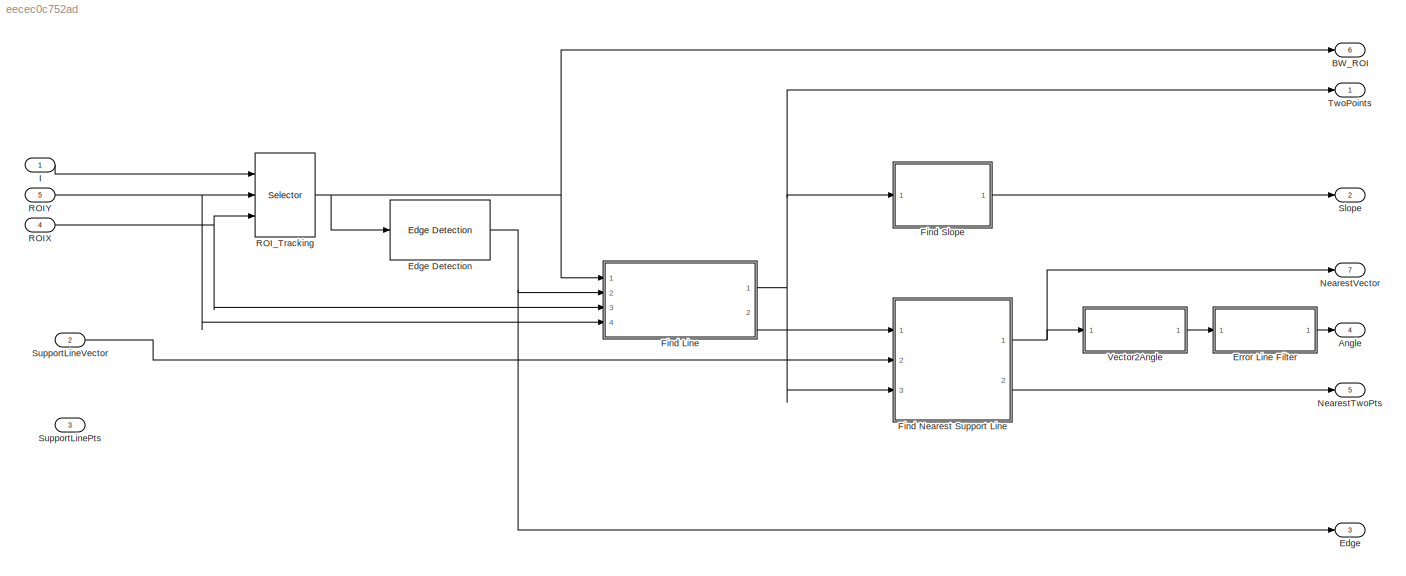
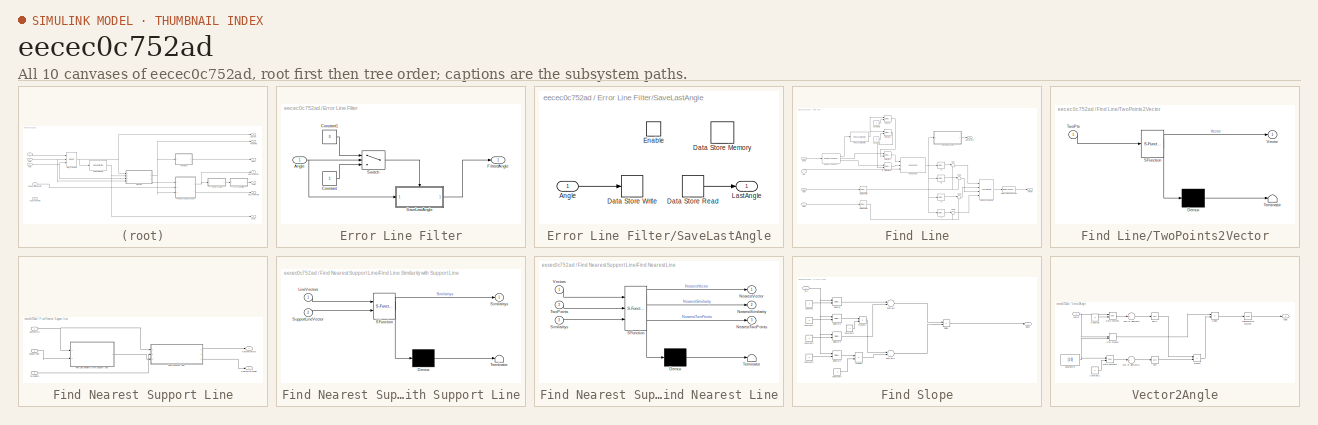
[diagram: thumbnail index - all 10 canvases of the model, root first then tree order]
MODEL slx_eecec0c752ad
KIND model
CONFIG AbsTol = auto
CONFIG EnableMultiTasking = on
CONFIG FixedStep = auto
CONFIG MaxStep = auto
CONFIG MinStep = auto
CONFIG RelTol = 1e-3
CONFIG SampleTimeConstraint = Unconstrained
CONFIG Solver = FixedStepAuto
CONFIG SolverName = FixedStepAuto
CONFIG StartTime = 0.0
CONFIG StopTime = 10.0
BLOCK [Outport] Angle
  IconDisplay = Port number
  OutDataTypeStr = double
  Port = 4
  PortDimensions = [1 1]
  SampleTime = [1/40,0]
  SamplingMode = Sample based
  SignalType = real
BLOCK [Outport] BW_ROI
  IconDisplay = Port number
  OutDataTypeStr = uint8
  Port = 6
  PortDimensions = [61 281]
  SampleTime = [1/40,0]
  SamplingMode = Sample based
  SignalType = real
BLOCK [Outport] Edge
  IconDisplay = Port number
  OutDataTypeStr = boolean
  Port = 3
  PortDimensions = [61 281]
  SampleTime = [1/40,0]
  SamplingMode = Sample based
  SignalType = real
BLOCK [Reference] Edge Detection  REF=visionanalysis/Edge Detection
  Ports = [1, 1]
  SourceBlock = visionanalysis/Edge Detection
  SourceProductBaseCode = VP
  SourceProductName = Computer Vision System Toolbox
  SourceType = Edge Detection
BLOCK [SubSystem] Error Line Filter
  Ports = [1, 1]
  RequestExecContextInheritance = off
  Variant = off
BLOCK [Inport] Error Line Filter/Angle
  IconDisplay = Port number
BLOCK [Constant] Error Line Filter/Constant
BLOCK [Constant] Error Line Filter/Constant1
  Value = 0
BLOCK [Outport] Error Line Filter/FilterdAngle
  IconDisplay = Port number
BLOCK [SubSystem] Error Line Filter/SaveLastAngle
  Ports = [1, 1, 1]
  RequestExecContextInheritance = off
  TreatAsAtomicUnit = on
  Variant = off
BLOCK [Inport] Error Line Filter/SaveLastAngle/Angle
  IconDisplay = Port number
BLOCK [DataStoreMemory] Error Line Filter/SaveLastAngle/Data Store Memory
  DataStoreName = Angle
  ReadBeforeWriteMsg = warning
  ShowAdditionalParam = off
  WriteAfterReadMsg = warning
  WriteAfterWriteMsg = warning
BLOCK [DataStoreRead] Error Line Filter/SaveLastAngle/Data Store Read
  DataStoreName = Angle
  Ports = [0, 1]
BLOCK [DataStoreWrite] Error Line Filter/SaveLastAngle/Data Store Write
  DataStoreName = Angle
  Ports = [1]
BLOCK [EnablePort] Error Line Filter/SaveLastAngle/Enable
  Ports = []
BLOCK [Outport] Error Line Filter/SaveLastAngle/LastAngle
  IconDisplay = Port number
BLOCK [Switch] Error Line Filter/Switch
  Criteria = u2 > Threshold
  InputSameDT = off
  SaturateOnIntegerOverflow = off
  Threshold = 2.8
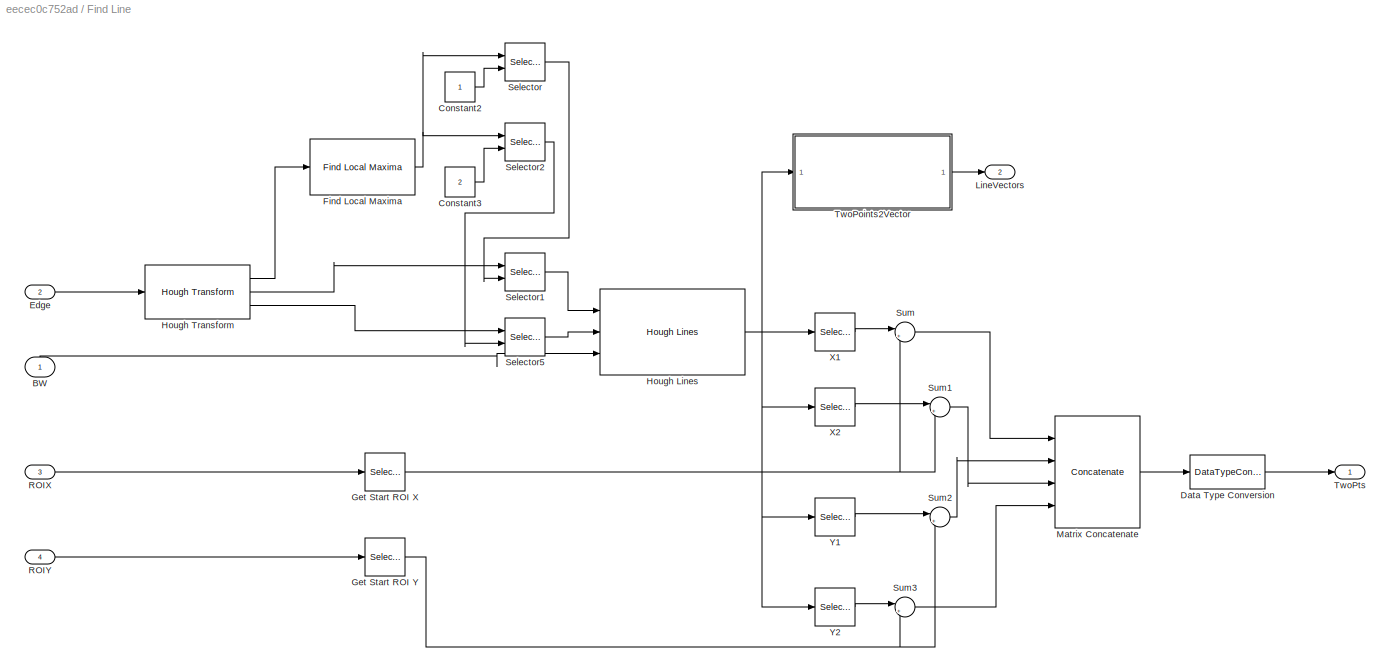
BLOCK [SubSystem] Find Line
  Ports = [4, 2]
  RequestExecContextInheritance = off
  Variant = off
BLOCK [Inport] Find Line/BW
  IconDisplay = Port number
BLOCK [Constant] Find Line/Constant2
BLOCK [Constant] Find Line/Constant3
  Value = 2
BLOCK [DataTypeConversion] Find Line/Data Type Conversion
  OutDataTypeStr = int32
  RndMeth = Floor
  SaturateOnIntegerOverflow = off
BLOCK [Inport] Find Line/Edge
  IconDisplay = Port number
  Port = 2
BLOCK [Reference] Find Line/Find Local Maxima  REF=visionstatistics/Find Local Maxima
  Ports = [1, 1]
  SourceBlock = visionstatistics/Find Local Maxima
  SourceProductBaseCode = VP
  SourceProductName = Computer Vision System Toolbox
  SourceType = Find Local Maxima
BLOCK [Selector] Find Line/Get Start ROI X
  IndexOptions = Index vector (dialog)
  Indices = [1 ]
  InputPortWidth = 281
  OutputSizes = 1
  Ports = [1, 1]
BLOCK [Selector] Find Line/Get Start ROI Y
  IndexOptions = Index vector (dialog)
  Indices = [1 ]
  InputPortWidth = 61
  OutputSizes = 1
  Ports = [1, 1]
BLOCK [Reference] Find Line/Hough Lines  REF=visiontransforms/Hough Lines
  Ports = [3, 1]
  SourceBlock = visiontransforms/Hough Lines
  SourceProductBaseCode = VP
  SourceProductName = Computer Vision System Toolbox
  SourceType = Hough Lines
BLOCK [Reference] Find Line/Hough Transform  REF=visiontransforms/Hough Transform
  Ports = [1, 3]
  SourceBlock = visiontransforms/Hough Transform
  SourceProductBaseCode = VP
  SourceProductName = Computer Vision System Toolbox
  SourceType = Hough Transform
BLOCK [Outport] Find Line/LineVectors
  IconDisplay = Port number
  Port = 2
BLOCK [Concatenate] Find Line/Matrix Concatenate
  ConcatenateDimension = 2
  Mode = Multidimensional array
  NumInputs = 4
  Ports = [4, 1]
BLOCK [Inport] Find Line/ROIX
  IconDisplay = Port number
  Port = 3
BLOCK [Inport] Find Line/ROIY
  IconDisplay = Port number
  Port = 4
BLOCK [Selector] Find Line/Selector
  IndexOptions = Select all,Index vector (port)
  Indices = [1 3],1
  InputPortWidth = 3
  NumberOfDimensions = 2
  OutputSizes = 1,1
  Ports = [2, 1]
BLOCK [Selector] Find Line/Selector1
  IndexOptions = Select all,Index vector (port)
  Indices = [1 3],1
  InputPortWidth = 3
  NumberOfDimensions = 2
  OutputSizes = 1,1
  Ports = [2, 1]
BLOCK [Selector] Find Line/Selector2
  IndexOptions = Select all,Index vector (port)
  Indices = [1 3],1
  InputPortWidth = 3
  NumberOfDimensions = 2
  OutputSizes = 1,1
  Ports = [2, 1]
BLOCK [Selector] Find Line/Selector5
  IndexOptions = Select all,Index vector (port)
  Indices = [1 3],1
  InputPortWidth = 3
  NumberOfDimensions = 2
  OutputSizes = 1,1
  Ports = [2, 1]
BLOCK [Sum] Find Line/Sum
  IconShape = round
  InputSameDT = off
  Inputs = |++
  OutDataTypeStr = Inherit: Inherit via internal rule
  Ports = [2, 1]
  SaturateOnIntegerOverflow = off
BLOCK [Sum] Find Line/Sum1
  IconShape = round
  InputSameDT = off
  Inputs = |++
  OutDataTypeStr = Inherit: Inherit via internal rule
  Ports = [2, 1]
  SaturateOnIntegerOverflow = off
BLOCK [Sum] Find Line/Sum2
  IconShape = round
  InputSameDT = off
  Inputs = |++
  OutDataTypeStr = Inherit: Inherit via internal rule
  Ports = [2, 1]
  SaturateOnIntegerOverflow = off
BLOCK [Sum] Find Line/Sum3
  IconShape = round
  InputSameDT = off
  Inputs = |++
  OutDataTypeStr = Inherit: Inherit via internal rule
  Ports = [2, 1]
  SaturateOnIntegerOverflow = off
BLOCK [SubSystem] Find Line/TwoPoints2Vector
  ErrorFcn = Stateflow.Translate.translate
  PermitHierarchicalResolution = ExplicitOnly
  Ports = [1, 1]
  RequestExecContextInheritance = off
  SFBlockType = MATLAB Function
  TreatAsAtomicUnit = on
  Variant = off
BLOCK [Demux] Find Line/TwoPoints2Vector/ Demux 
  Outputs = 1
  Ports = [1, 1]
BLOCK [S-Function] Find Line/TwoPoints2Vector/ SFunction 
  EnableBusSupport = on
  FunctionName = sf_sfun
  PortCounts = [1 2]
  Ports = [1, 2]
  SFcnIsStateOwnerBlock = off
  SFunctionDeploymentMode = off
  Tag = Stateflow S-Function picam_track 6
BLOCK [Terminator] Find Line/TwoPoints2Vector/ Terminator 
BLOCK [Inport] Find Line/TwoPoints2Vector/TwoPts
  IconDisplay = Port number
BLOCK [Outport] Find Line/TwoPoints2Vector/Vector
  IconDisplay = Port number
BLOCK [Outport] Find Line/TwoPts
  IconDisplay = Port number
BLOCK [Selector] Find Line/X1
  IndexOptions = Select all,Index vector (dialog)
  Indices = [1 3],1
  InputPortWidth = 3
  NumberOfDimensions = 2
  OutputSizes = 1,1
  Ports = [1, 1]
BLOCK [Selector] Find Line/X2
  IndexOptions = Select all,Index vector (dialog)
  Indices = [1 3],3
  InputPortWidth = 3
  NumberOfDimensions = 2
  OutputSizes = 1,1
  Ports = [1, 1]
BLOCK [Selector] Find Line/Y1
  IndexOptions = Select all,Index vector (dialog)
  Indices = [1 3],2
  InputPortWidth = 3
  NumberOfDimensions = 2
  OutputSizes = 1,1
  Ports = [1, 1]
BLOCK [Selector] Find Line/Y2
  IndexOptions = Select all,Index vector (dialog)
  Indices = [1 3],4
  InputPortWidth = 3
  NumberOfDimensions = 2
  OutputSizes = 1,1
  Ports = [1, 1]
BLOCK [SubSystem] Find Nearest Support Line
  Ports = [3, 2]
  RequestExecContextInheritance = off
  Variant = off
BLOCK [SubSystem] Find Nearest Support Line/Find Line Similarity with Support Line
  ErrorFcn = Stateflow.Translate.translate
  PermitHierarchicalResolution = ExplicitOnly
  Ports = [2, 1]
  RequestExecContextInheritance = off
  SFBlockType = MATLAB Function
  TreatAsAtomicUnit = on
  Variant = off
BLOCK [Demux] Find Nearest Support Line/Find Line Similarity with Support Line/ Demux 
  Outputs = 1
  Ports = [1, 1]
BLOCK [S-Function] Find Nearest Support Line/Find Line Similarity with Support Line/ SFunction 
  EnableBusSupport = on
  FunctionName = sf_sfun
  PortCounts = [2 2]
  Ports = [2, 2]
  SFcnIsStateOwnerBlock = off
  SFunctionDeploymentMode = off
  Tag = Stateflow S-Function picam_track 7
BLOCK [Terminator] Find Nearest Support Line/Find Line Similarity with Support Line/ Terminator 
BLOCK [Inport] Find Nearest Support Line/Find Line Similarity with Support Line/LineVectors
  IconDisplay = Port number
BLOCK [Outport] Find Nearest Support Line/Find Line Similarity with Support Line/Similaritys
  IconDisplay = Port number
BLOCK [Inport] Find Nearest Support Line/Find Line Similarity with Support Line/SupportLineVector
  IconDisplay = Port number
  Port = 2
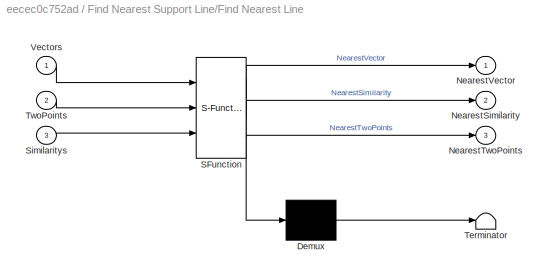
BLOCK [SubSystem] Find Nearest Support Line/Find Nearest Line
  ErrorFcn = Stateflow.Translate.translate
  PermitHierarchicalResolution = ExplicitOnly
  Ports = [3, 3]
  RequestExecContextInheritance = off
  SFBlockType = MATLAB Function
  TreatAsAtomicUnit = on
  Variant = off
BLOCK [Demux] Find Nearest Support Line/Find Nearest Line/ Demux 
  Outputs = 1
  Ports = [1, 1]
BLOCK [S-Function] Find Nearest Support Line/Find Nearest Line/ SFunction 
  EnableBusSupport = on
  FunctionName = sf_sfun
  PortCounts = [3 4]
  Ports = [3, 4]
  SFcnIsStateOwnerBlock = off
  SFunctionDeploymentMode = off
  Tag = Stateflow S-Function picam_track 8
BLOCK [Terminator] Find Nearest Support Line/Find Nearest Line/ Terminator 
BLOCK [Outport] Find Nearest Support Line/Find Nearest Line/NearestSimilarity
  IconDisplay = Port number
  Port = 2
BLOCK [Outport] Find Nearest Support Line/Find Nearest Line/NearestTwoPoints
  IconDisplay = Port number
  Port = 3
BLOCK [Outport] Find Nearest Support Line/Find Nearest Line/NearestVector
  IconDisplay = Port number
BLOCK [Inport] Find Nearest Support Line/Find Nearest Line/Similaritys
  IconDisplay = Port number
  Port = 3
BLOCK [Inport] Find Nearest Support Line/Find Nearest Line/TwoPoints
  IconDisplay = Port number
  Port = 2
BLOCK [Inport] Find Nearest Support Line/Find Nearest Line/Vectors
  IconDisplay = Port number
BLOCK [Inport] Find Nearest Support Line/LineVectors
  IconDisplay = Port number
BLOCK [Outport] Find Nearest Support Line/NearestTwoPoint
  IconDisplay = Port number
  Port = 2
  PortDimensions = [1 4]
BLOCK [Outport] Find Nearest Support Line/NearestVector
  IconDisplay = Port number
  PortDimensions = [1 2]
BLOCK [Inport] Find Nearest Support Line/SupportLine
  IconDisplay = Port number
  Port = 2
BLOCK [Inport] Find Nearest Support Line/TwoPoints
  IconDisplay = Port number
  Port = 3
BLOCK [SubSystem] Find Slope
  Ports = [1, 1]
  RequestExecContextInheritance = off
  Variant = off
BLOCK [Constant] Find Slope/Constant
  OutDataTypeStr = uint8
BLOCK [Constant] Find Slope/Constant1
  OutDataTypeStr = uint8
  Value = 2
BLOCK [Constant] Find Slope/Constant2
  OutDataTypeStr = uint8
  Value = 3
BLOCK [Constant] Find Slope/Constant3
  OutDataTypeStr = uint8
  Value = 4
BLOCK [Constant] Find Slope/Constant4
  Value = -1
BLOCK [Constant] Find Slope/Constant5
  Value = -1
BLOCK [Product] Find Slope/Divide
  InputSameDT = off
  Inputs = /*
  OutDataTypeStr = double
  Ports = [2, 1]
  RndMeth = Nearest
  SaturateOnIntegerOverflow = off
BLOCK [Product] Find Slope/Product
  InputSameDT = off
  OutDataTypeStr = Inherit: Inherit via internal rule
  Ports = [2, 1]
  RndMeth = Floor
  SaturateOnIntegerOverflow = off
BLOCK [Product] Find Slope/Product1
  InputSameDT = off
  OutDataTypeStr = Inherit: Inherit via internal rule
  Ports = [2, 1]
  RndMeth = Floor
  SaturateOnIntegerOverflow = off
BLOCK [Inport] Find Slope/Pts
  IconDisplay = Port number
BLOCK [Selector] Find Slope/Selector
  IndexOptions = Select all,Index vector (port)
  Indices = [1 3],1
  InputPortWidth = 3
  NumberOfDimensions = 2
  OutputSizes = 1,1
  Ports = [2, 1]
BLOCK [Selector] Find Slope/Selector2
  IndexOptions = Select all,Index vector (port)
  Indices = [1 3],1
  InputPortWidth = 3
  NumberOfDimensions = 2
  OutputSizes = 1,1
  Ports = [2, 1]
BLOCK [Selector] Find Slope/Selector3
  IndexOptions = Select all,Index vector (port)
  Indices = [1 3],1
  InputPortWidth = 3
  NumberOfDimensions = 2
  OutputSizes = 1,1
  Ports = [2, 1]
BLOCK [Selector] Find Slope/Selector4
  IndexOptions = Select all,Index vector (port)
  Indices = [1 3],1
  InputPortWidth = 3
  NumberOfDimensions = 2
  OutputSizes = 1,1
  Ports = [2, 1]
BLOCK [Outport] Find Slope/Slope
  IconDisplay = Port number
BLOCK [Sum] Find Slope/Subtract
  InputSameDT = off
  Inputs = +-
  OutDataTypeStr = Inherit: Inherit via internal rule
  Ports = [2, 1]
  SaturateOnIntegerOverflow = off
BLOCK [Sum] Find Slope/Subtract1
  InputSameDT = off
  Inputs = +-
  OutDataTypeStr = Inherit: Inherit via internal rule
  Ports = [2, 1]
  SaturateOnIntegerOverflow = off
BLOCK [Inport] I
  IconDisplay = Port number
  OutDataTypeStr = uint8
  PortDimensions = [240 320]
  SampleTime = [1/40,0]
  SamplingMode = Sample based
  SignalType = real
BLOCK [Outport] NearestTwoPts
  IconDisplay = Port number
  OutDataTypeStr = int32
  Port = 5
  PortDimensions = [1 4]
  SampleTime = [1/40,0]
  SamplingMode = Sample based
  SignalType = real
BLOCK [Outport] NearestVector
  IconDisplay = Port number
  Port = 7
  PortDimensions = [1 2]
BLOCK [Inport] ROIX
  IconDisplay = Port number
  OutDataTypeStr = double
  Port = 4
  PortDimensions = 281
  SamplingMode = Sample based
  SignalType = real
BLOCK [Inport] ROIY
  IconDisplay = Port number
  OutDataTypeStr = double
  Port = 5
  PortDimensions = 61
  SamplingMode = Sample based
  SignalType = real
BLOCK [Selector] ROI_Tracking
  IndexOptions = Index vector (port),Index vector (port)
  Indices = [1 3],1
  InputPortWidth = 3
  NumberOfDimensions = 2
  OutputSizes = 1,1
  Ports = [3, 1]
BLOCK [Outport] Slope
  IconDisplay = Port number
  OutDataTypeStr = double
  Port = 2
  PortDimensions = [5 1]
  SampleTime = [1/40,0]
  SamplingMode = Sample based
  SignalType = real
  VarSizeSig = Yes
BLOCK [Inport] SupportLinePts
  IconDisplay = Port number
  OutDataTypeStr = double
  Port = 3
  PortDimensions = 4
  SamplingMode = Sample based
  SignalType = real
BLOCK [Inport] SupportLineVector
  IconDisplay = Port number
  OutDataTypeStr = double
  Port = 2
  PortDimensions = [1 2]
  SamplingMode = Sample based
  SignalType = real
BLOCK [Outport] TwoPoints
  IconDisplay = Port number
  OutDataTypeStr = int32
  PortDimensions = [5 4]
  SampleTime = [1/40,0]
  SamplingMode = Sample based
  SignalType = real
  VarSizeSig = Yes
BLOCK [SubSystem] Vector2Angle
  Ports = [1, 1]
  RequestExecContextInheritance = off
  Variant = off
BLOCK [Outport] Vector2Angle/Angle
  IconDisplay = Port number
BLOCK [Constant] Vector2Angle/BaseVector
  Value = [1 0]
  VectorParams1D = off
BLOCK [Constant] Vector2Angle/Constant
  Value = 2
BLOCK [Constant] Vector2Angle/Constant1
  Value = 2
BLOCK [Product] Vector2Angle/Divide
  InputSameDT = off
  Inputs = */
  OutDataTypeStr = Inherit: Inherit via internal rule
  Ports = [2, 1]
  RndMeth = Floor
  SaturateOnIntegerOverflow = off
BLOCK [DotProduct] Vector2Angle/Dot Product
  OutDataTypeStr = Inherit: Inherit via internal rule
BLOCK [Math] Vector2Angle/Math Function
  Operator = pow
  Ports = [2, 1]
BLOCK [Math] Vector2Angle/Math Function1
  Operator = pow
  Ports = [2, 1]
BLOCK [Product] Vector2Angle/Product
  InputSameDT = off
  OutDataTypeStr = Inherit: Inherit via internal rule
  Ports = [2, 1]
  RndMeth = Floor
  SaturateOnIntegerOverflow = off
BLOCK [Sqrt] Vector2Angle/Sqrt
BLOCK [Sqrt] Vector2Angle/Sqrt1
BLOCK [Sum] Vector2Angle/Sum of Elements
  InputSameDT = off
  Inputs = +
  OutDataTypeStr = Inherit: Inherit via internal rule
  Ports = [1, 1]
  SaturateOnIntegerOverflow = off
BLOCK [Sum] Vector2Angle/Sum of Elements1
  InputSameDT = off
  Inputs = +
  OutDataTypeStr = Inherit: Inherit via internal rule
  Ports = [1, 1]
  SaturateOnIntegerOverflow = off
BLOCK [Trigonometry] Vector2Angle/Trigonometric Function
  Operator = acos
  Ports = [1, 1]
BLOCK [Inport] Vector2Angle/Vector
  IconDisplay = Port number
NET Edge Detection:1 -> Edge:1, Find Line:2
NET Error Line Filter/Angle:1 -> Error Line Filter/SaveLastAngle:1, Error Line Filter/Switch:2
LINE Error Line Filter/Constant1:1 -> Error Line Filter/Switch:1
LINE Error Line Filter/Constant:1 -> Error Line Filter/Switch:3
LINE Error Line Filter/SaveLastAngle/Angle:1 -> Error Line Filter/SaveLastAngle/Data Store Write:1
LINE Error Line Filter/SaveLastAngle/Data Store Read:1 -> Error Line Filter/SaveLastAngle/LastAngle:1
LINE Error Line Filter/SaveLastAngle:1 -> Error Line Filter/FilterdAngle:1
LINE Error Line Filter/Switch:1 -> Error Line Filter/SaveLastAngle:enable
LINE Error Line Filter:1 -> Angle:1
LINE Find Line/BW:1 -> Find Line/Hough Lines:3
LINE Find Line/Constant2:1 -> Find Line/Selector:2
LINE Find Line/Constant3:1 -> Find Line/Selector2:2
LINE Find Line/Data Type Conversion:1 -> Find Line/TwoPts:1
LINE Find Line/Edge:1 -> Find Line/Hough Transform:1
NET Find Line/Find Local Maxima:1 -> Find Line/Selector2:1, Find Line/Selector:1
NET Find Line/Get Start ROI X:1 -> Find Line/Sum1:2, Find Line/Sum:2
NET Find Line/Get Start ROI Y:1 -> Find Line/Sum2:2, Find Line/Sum3:2
NET Find Line/Hough Lines:1 -> Find Line/TwoPoints2Vector:1, Find Line/X1:1, Find Line/X2:1, Find Line/Y1:1, Find Line/Y2:1
LINE Find Line/Hough Transform:1 -> Find Line/Find Local Maxima:1
LINE Find Line/Hough Transform:2 -> Find Line/Selector1:1
LINE Find Line/Hough Transform:3 -> Find Line/Selector5:1
LINE Find Line/Matrix Concatenate:1 -> Find Line/Data Type Conversion:1
LINE Find Line/ROIX:1 -> Find Line/Get Start ROI X:1
LINE Find Line/ROIY:1 -> Find Line/Get Start ROI Y:1
LINE Find Line/Selector1:1 -> Find Line/Hough Lines:1
LINE Find Line/Selector2:1 -> Find Line/Selector5:2
LINE Find Line/Selector5:1 -> Find Line/Hough Lines:2
LINE Find Line/Selector:1 -> Find Line/Selector1:2
LINE Find Line/Sum1:1 -> Find Line/Matrix Concatenate:3
LINE Find Line/Sum2:1 -> Find Line/Matrix Concatenate:2
LINE Find Line/Sum3:1 -> Find Line/Matrix Concatenate:4
LINE Find Line/Sum:1 -> Find Line/Matrix Concatenate:1
LINE Find Line/TwoPoints2Vector:1 -> Find Line/LineVectors:1
LINE Find Line/X1:1 -> Find Line/Sum:1
LINE Find Line/X2:1 -> Find Line/Sum1:1
LINE Find Line/Y1:1 -> Find Line/Sum2:1
LINE Find Line/Y2:1 -> Find Line/Sum3:1
NET Find Line:1 -> Find Nearest Support Line:3, Find Slope:1, TwoPoints:1
LINE Find Line:2 -> Find Nearest Support Line:1
LINE Find Nearest Support Line/Find Line Similarity with Support Line:1 -> Find Nearest Support Line/Find Nearest Line:3
LINE Find Nearest Support Line/Find Nearest Line:1 -> Find Nearest Support Line/NearestVector:1
LINE Find Nearest Support Line/Find Nearest Line:3 -> Find Nearest Support Line/NearestTwoPoint:1
NET Find Nearest Support Line/LineVectors:1 -> Find Nearest Support Line/Find Line Similarity with Support Line:1, Find Nearest Support Line/Find Nearest Line:1
LINE Find Nearest Support Line/SupportLine:1 -> Find Nearest Support Line/Find Line Similarity with Support Line:2
LINE Find Nearest Support Line/TwoPoints:1 -> Find Nearest Support Line/Find Nearest Line:2
NET Find Nearest Support Line:1 -> NearestVector:1, Vector2Angle:1
LINE Find Nearest Support Line:2 -> NearestTwoPts:1
LINE Find Slope/Constant1:1 -> Find Slope/Selector2:2
LINE Find Slope/Constant2:1 -> Find Slope/Selector3:2
LINE Find Slope/Constant3:1 -> Find Slope/Selector4:2
LINE Find Slope/Constant4:1 -> Find Slope/Product:2
LINE Find Slope/Constant5:1 -> Find Slope/Product1:2
LINE Find Slope/Constant:1 -> Find Slope/Selector:2
LINE Find Slope/Divide:1 -> Find Slope/Slope:1
LINE Find Slope/Product1:1 -> Find Slope/Subtract1:1
LINE Find Slope/Product:1 -> Find Slope/Subtract1:2
NET Find Slope/Pts:1 -> Find Slope/Selector2:1, Find Slope/Selector3:1, Find Slope/Selector4:1, Find Slope/Selector:1
LINE Find Slope/Selector2:1 -> Find Slope/Product1:1
LINE Find Slope/Selector3:1 -> Find Slope/Subtract:2
LINE Find Slope/Selector4:1 -> Find Slope/Product:1
LINE Find Slope/Selector:1 -> Find Slope/Subtract:1
LINE Find Slope/Subtract1:1 -> Find Slope/Divide:2
LINE Find Slope/Subtract:1 -> Find Slope/Divide:1
LINE Find Slope:1 -> Slope:1
LINE I:1 -> ROI_Tracking:1
NET ROIX:1 -> Find Line:3, ROI_Tracking:3
NET ROIY:1 -> Find Line:4, ROI_Tracking:2
NET ROI_Tracking:1 -> BW_ROI:1, Edge Detection:1, Find Line:1
LINE SupportLineVector:1 -> Find Nearest Support Line:2
NET Vector2Angle/BaseVector:1 -> Vector2Angle/Dot Product:2, Vector2Angle/Math Function1:1
LINE Vector2Angle/Constant1:1 -> Vector2Angle/Math Function1:2
LINE Vector2Angle/Constant:1 -> Vector2Angle/Math Function:2
LINE Vector2Angle/Divide:1 -> Vector2Angle/Trigonometric Function:1
LINE Vector2Angle/Dot Product:1 -> Vector2Angle/Divide:1
LINE Vector2Angle/Math Function1:1 -> Vector2Angle/Sum of Elements1:1
LINE Vector2Angle/Math Function:1 -> Vector2Angle/Sum of Elements:1
LINE Vector2Angle/Product:1 -> Vector2Angle/Divide:2
LINE Vector2Angle/Sqrt1:1 -> Vector2Angle/Product:1
LINE Vector2Angle/Sqrt:1 -> Vector2Angle/Product:2
LINE Vector2Angle/Sum of Elements1:1 -> Vector2Angle/Sqrt:1
LINE Vector2Angle/Sum of Elements:1 -> Vector2Angle/Sqrt1:1
LINE Vector2Angle/Trigonometric Function:1 -> Vector2Angle/Angle:1
NET Vector2Angle/Vector:1 -> Vector2Angle/Dot Product:1, Vector2Angle/Math Function:1
LINE Vector2Angle:1 -> Error Line Filter:1
note: NET lines group one-source signal fan-out (src -> all destinations, sorted); 1:1 wires keep LINE
CHART Find Line/TwoPoints2Vector states=1 transitions=1
  STATE_LABEL 'eML_blk_kernel()'
  STATE_LABEL 'SCRIPT:\nfunction Vector = TwoPoints2Vector(TwoPts)\nVector = int32([ TwoPts(:,1)-TwoPts(:,3) -(TwoPts(:,2)-TwoPts(:,4))]);\n\n'
CHART Find Nearest Support Line/Find Line Similarity with Support Line states=1 transitions=1
  STATE_LABEL 'eML_blk_kernel()'
  STATE_LABEL 'SCRIPT:\nfunction Similaritys= CosineSimilarity(LineVectors,SupportLineVector)\n[m,n] = size(LineVectors);\nLineVectors = double(LineVectors);\n\nSimilaritys = double(zeros(m,1));\n%SupportLineVector = double([5 5]);\nfor i=1:m\n    Similaritys(i) = (LineVectors(i,1)*SupportLineVector(1) + LineVectors(i,2)*SupportLineVector(2)) / (  sqrt(sum(LineVectors(i,:).^2)) * sqrt(sum(SupportLineVector(:).^2)) );\nen...<+3ch>'
CHART Find Nearest Support Line/Find Nearest Line states=1 transitions=1
  STATE_LABEL 'eML_blk_kernel()'
  STATE_LABEL 'SCRIPT:\nfunction [NearestVector,NearestSimilarity,NearestTwoPoints]= FindMostSimilarityLine(Vectors,TwoPoints,Similaritys)\nSimilaritys = abs(Similaritys);\n[m,~]=size(Vectors);\nNearestTwoPoints = int32([0 0 0 0]);\nNearestSimilarity = double(0);\nif m ~= 0\n    NearestSimilarity = Similaritys(1);\n    NearestVector = double(Vectors(1,1:2));\n\n    for i = 1:m\n        if Similaritys(i) > NearestSimilarity...<+220ch>'
